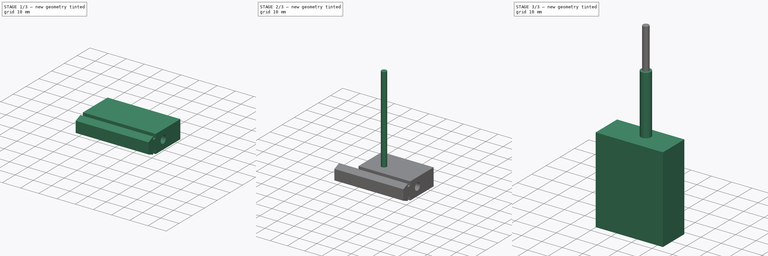
[diagram: build sequence overview — one tinted view per stage of 3, left to right]
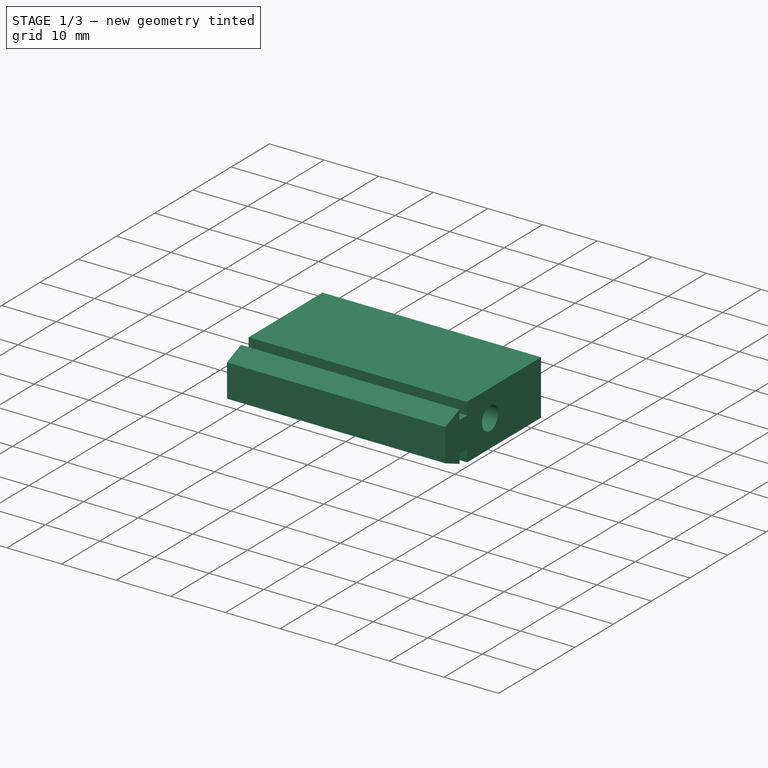
[diagram: stage 1 of 3 — iso view after this stage's code; geometry added in this stage tinted green]
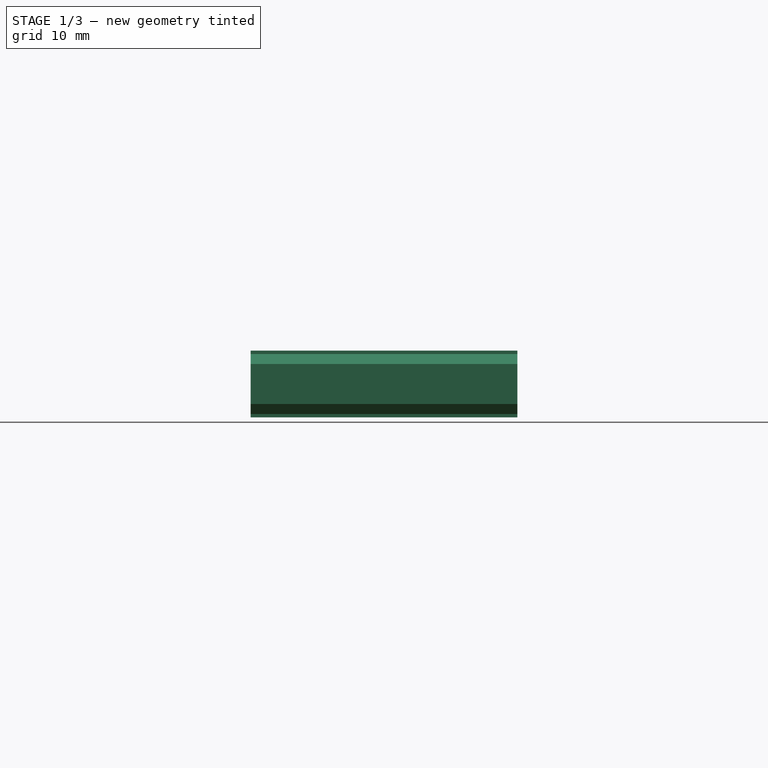
[diagram: stage 1 of 3 — front view after this stage's code; geometry added in this stage tinted green]
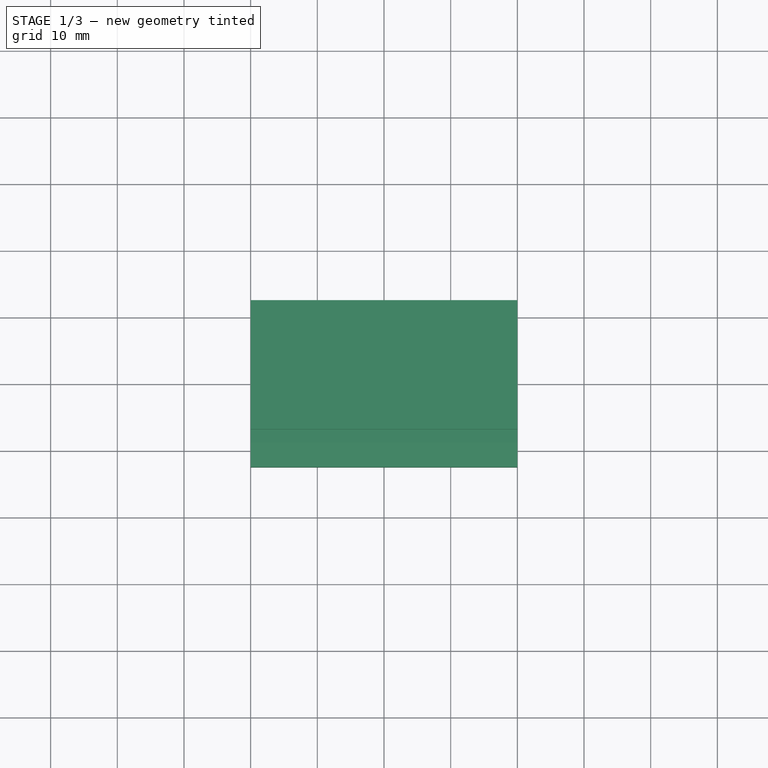
[diagram: stage 1 of 3 — top view after this stage's code; geometry added in this stage tinted green]
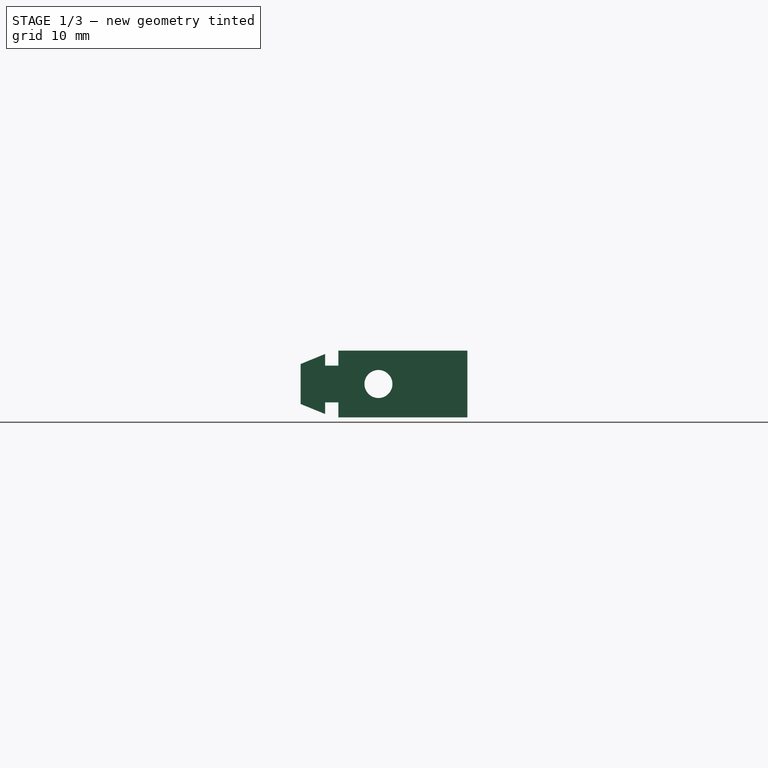
[diagram: stage 1 of 3 — right view after this stage's code; geometry added in this stage tinted green]
FCSTD DOCUMENT  (FreeCAD 1.0R39109 (Git))
Label: LockProfile_6
License: All rights reserved
LicenseURL: http://en.wikipedia.org/wiki/All_rights_reserved
objects: Sketcher::SketchObject×5, Path::FeaturePython×5, Part::FeaturePython×4, PartDesign::Pocket×3, App::DocumentObjectGroup×3, PartDesign::Pad×1, App::FeaturePython×1, PartDesign::Body×1
note: 29 computed .brp shape members not serialized (recipe doc carries the construction recipe); baked Part::Feature solids carry a one-line shape summary decoded from their .brp

FEATURE [Sketcher::SketchObject] Sketch
  ArcFitTolerance = 1e-06
  AttachmentSupport = -> [XY_Plane]
  FullyConstrained = true
  MakeInternals = false
  MapMode = 5
  sketch-geometry (5):
    g0: LineSegment StartX=-20 StartY=-12.5 StartZ=0 EndX=20 EndY=-12.5 EndZ=0
    g1: LineSegment StartX=20 StartY=-12.5 StartZ=0 EndX=20 EndY=12.5 EndZ=0
    g2: LineSegment StartX=20 StartY=12.5 StartZ=0 EndX=-20 EndY=12.5 EndZ=0
    g3: LineSegment StartX=-20 StartY=12.5 StartZ=0 EndX=-20 EndY=-12.5 EndZ=0
    g4: GeomPoint [constr] X=0 Y=0 Z=0
  constraints (12):
    c: Coincident(g0,g1)
    c: Coincident(g1,g2)
    c: Coincident(g2,g3)
    c: Coincident(g3,g0)
    c: Horizontal(g0)
    c: Horizontal(g2)
    c: Vertical(g1)
    c: Vertical(g3)
    c: Symmetric(g2,g0,g4)
    c: Distance(g1,g3) = 40
    c: Distance(g0,g2) = 25
    c: Coincident(g4,g-1)
FEATURE [PartDesign::Pad] Pad
  Direction = (0,0,1)
  Length = 10
  Length2 = 10
  Profile = -> Sketch
  ReferenceAxis = -> Sketch [N_Axis]
  Refine = true
  Reversed = true
  Suppressed = false
  Type = 0
FEATURE [Sketcher::SketchObject] Sketch001
  ArcFitTolerance = 1e-06
  ExternalGeometry = -> [Pad]
  FullyConstrained = false
  MakeInternals = false
  MapMode = 5
  Placement = pos=(20,0,0) rot=(0.57735,0.57735,0.57735;2.0944rad)
  sketch-geometry (13):
    g0: LineSegment [constr] StartX=-13.3351 StartY=-5 StartZ=0 EndX=12.5206 EndY=-5 EndZ=0
    g1: LineSegment StartX=-8.83509 StartY=-0.5 StartZ=0 EndX=-8.83509 EndY=-2.25 EndZ=0
    g2: LineSegment StartX=-8.83509 StartY=-2.25 StartZ=0 EndX=-6.83509 EndY=-2.25 EndZ=0
    g3: LineSegment StartX=-6.83509 StartY=-2.25 StartZ=0 EndX=-6.83509 EndY=0 EndZ=0
    g4: LineSegment StartX=-12.5 StartY=-2 StartZ=0 EndX=-8.83509 EndY=-0.5 EndZ=0
    g5: LineSegment StartX=-6.83509 StartY=0 StartZ=0 EndX=-12.5 EndY=0 EndZ=0
    g6: LineSegment StartX=-12.5 StartY=-2 StartZ=0 EndX=-12.5 EndY=0 EndZ=0
    g7: LineSegment StartX=-8.83509 StartY=-9.5 StartZ=0 EndX=-8.83509 EndY=-7.75 EndZ=0
    g8: LineSegment StartX=-8.83509 StartY=-7.75 StartZ=0 EndX=-6.83509 EndY=-7.75 EndZ=0
    g9: LineSegment StartX=-6.83509 StartY=-7.75 StartZ=0 EndX=-6.83509 EndY=-10 EndZ=0
    g10: LineSegment StartX=-12.5 StartY=-8 StartZ=0 EndX=-8.83509 EndY=-9.5 EndZ=0
    g11: LineSegment StartX=-6.83509 StartY=-10 StartZ=0 EndX=-12.5 EndY=-10 EndZ=0
    g12: LineSegment StartX=-12.5 StartY=-8 StartZ=0 EndX=-12.5 EndY=-10 EndZ=0
  constraints (28):
    c: Horizontal(g0)
    c: Vertical(g1)
    c: Horizontal(g2)
    c: Coincident(g3,g2)
    c: PointOnObject(g3,g-1)
    c: Vertical(g3)
    c: Coincident(g4,g1)
    c: DistanceY(g0,g4) = 3
    c: DistanceY(g0,g1) = 4.5
    c: DistanceX(g0,g1) = 4.5
    c: DistanceY(g0,g1) = 2.75
    c: Coincident(g2,g1)
    c: DistanceX(g0,g2) = 6.5
    c: Coincident(g5,g3)
    c: Coincident(g6,g4)
    c: Coincident(g6,g5)
    c: Vertical(g6)
    c: DistanceY(g0,g-3) = 5
    c: Vertical(g7)
    c: Horizontal(g8)
    c: Coincident(g9,g8)
    c: Vertical(g9)
    c: Coincident(g10,g7)
    c: Coincident(g8,g7)
    c: Coincident(g11,g9)
    c: Coincident(g12,g10)
    c: Coincident(g12,g11)
    c: Vertical(g12)
FEATURE [PartDesign::Pocket] Pocket
  BaseFeature = -> Pad
  Direction = (-1,0,0)
  Length = 5
  Length2 = 5
  Profile = -> Sketch001
  ReferenceAxis = -> Sketch001 [N_Axis]
  Refine = true
  Suppressed = false
  Type = 1
FEATURE [Path::FeaturePython] _mm_Endmill  label="3mm Endmill001"  # Path/CAM operation (typed FeaturePython)
  HorizFeed = 6.66667
  HorizRapid = 0
  SpindleDir = 0
  SpindleSpeed = 10000
  Tool = -> ToolBit001
  ToolNumber = 2
  VertFeed = 6.66667
  VertRapid = 0
  expr: HorizRapid = SetupSheet.HorizRapid
  expr: VertRapid = SetupSheet.VertRapid
FEATURE [App::DocumentObjectGroup] Tools
  Group = -> [TC__Default_Tool,_mm_Endmill]
FEATURE [Sketcher::SketchObject] Sketch002
  ArcFitTolerance = 1e-06
  AttachmentSupport = -> [Pocket]
  ExternalGeometry = -> [Pad,Pocket]
  FullyConstrained = true
  MakeInternals = false
  MapMode = 5
  Placement = pos=(-20,0,0) rot=(0.57735,-0.57735,-0.57735;2.0944rad)
  sketch-geometry (1):
    g0: Circle CenterX=0.835087 CenterY=-5 CenterZ=0 NormalX=0 NormalY=0 NormalZ=1 AngleXU=0 Radius=2.1
  constraints (3):
    c: Diameter(g0) = 4.2
    c: DistanceX(g0,g-4) = 8
    c: DistanceY(g0,g-3) = 5
FEATURE [PartDesign::Pocket] Pocket001
  BaseFeature = -> Pocket
  Direction = (1,0,0)
  Length = 5
  Length2 = 5
  Profile = -> Sketch002
  ReferenceAxis = -> Sketch002 [N_Axis]
  Refine = true
  Suppressed = false
  Type = 1
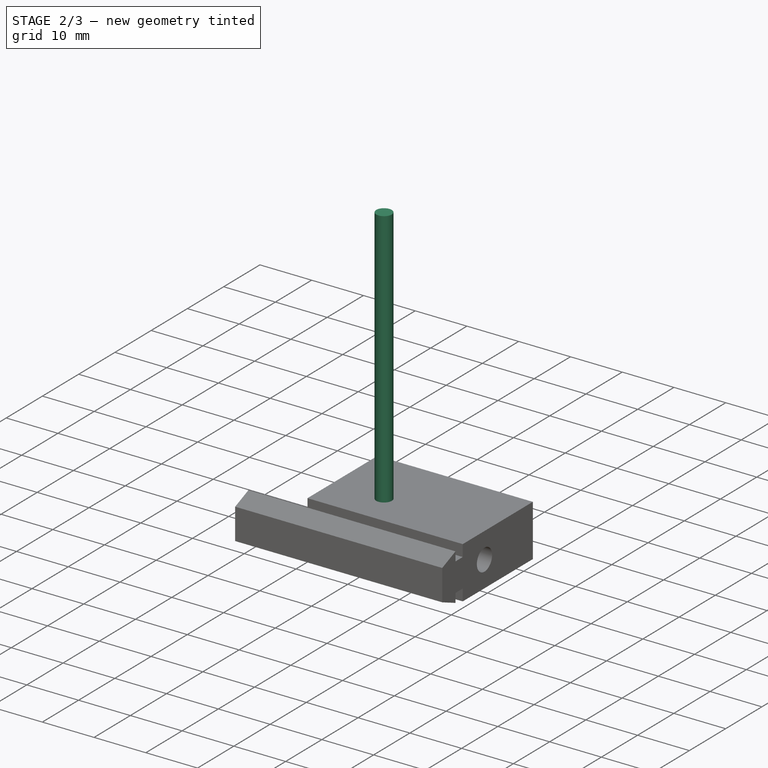
[diagram: stage 2 of 3 — iso view after this stage's code; geometry added in this stage tinted green]
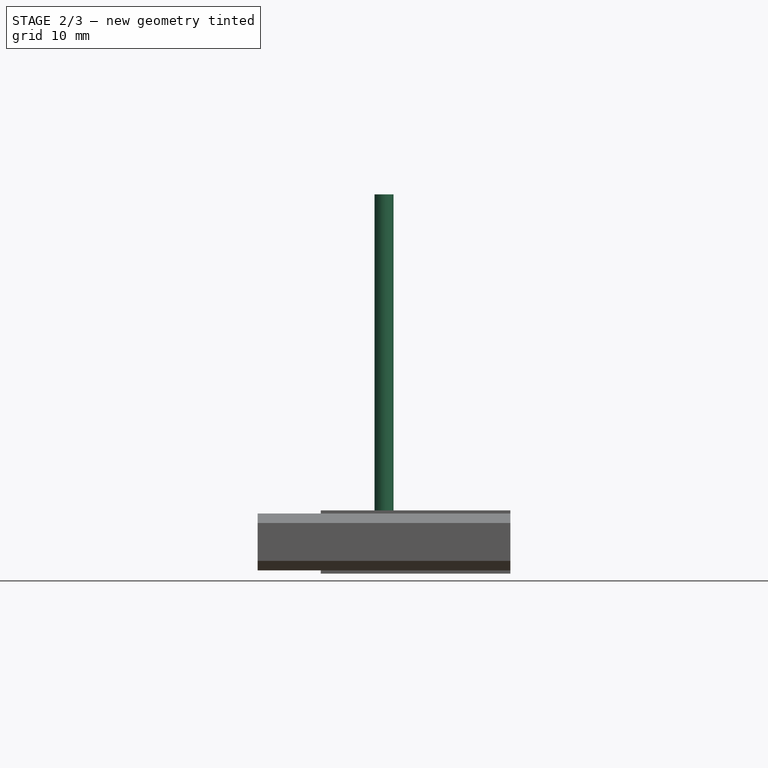
[diagram: stage 2 of 3 — front view after this stage's code; geometry added in this stage tinted green]
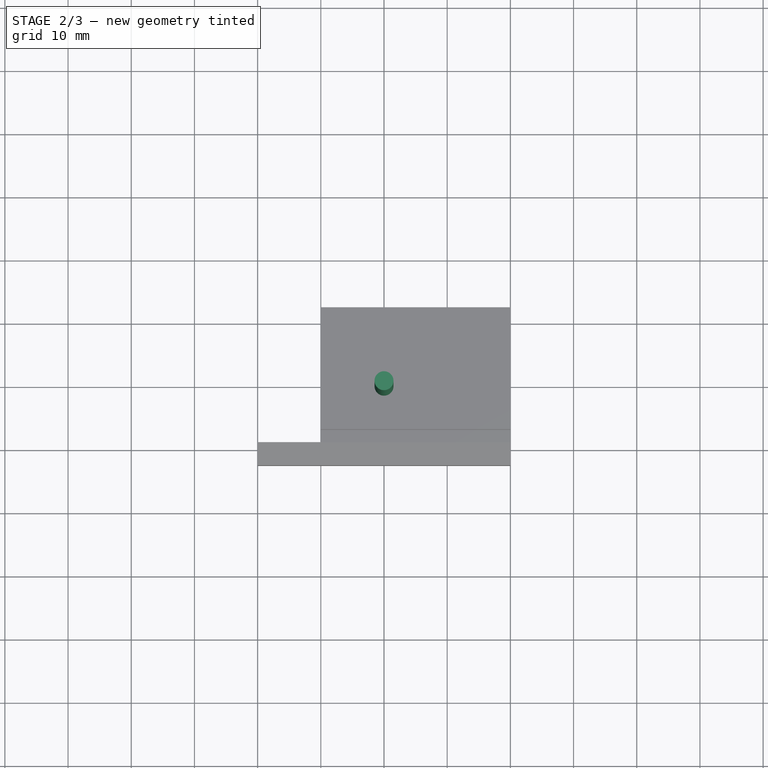
[diagram: stage 2 of 3 — top view after this stage's code; geometry added in this stage tinted green]
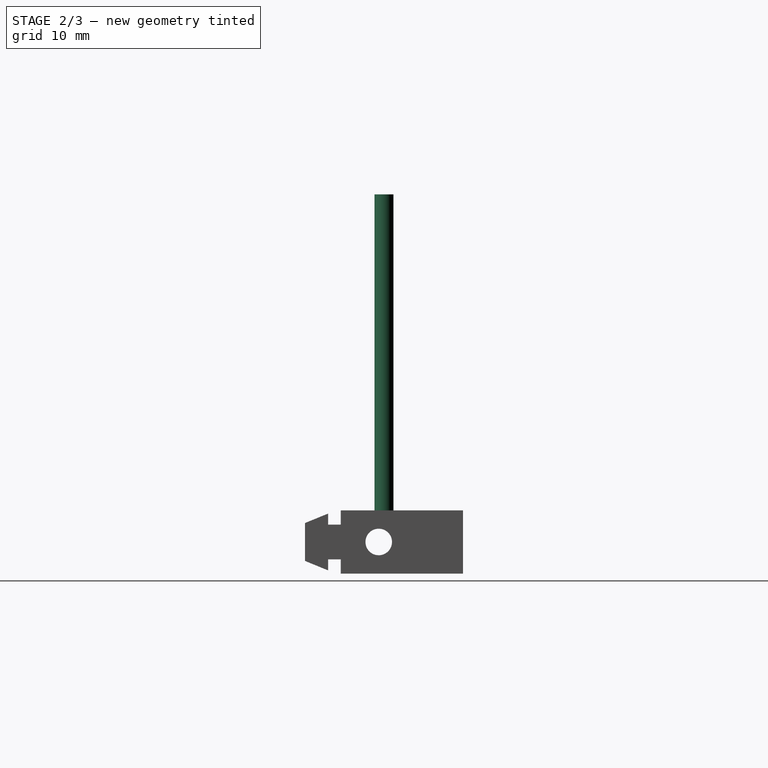
[diagram: stage 2 of 3 — right view after this stage's code; geometry added in this stage tinted green]
FEATURE [Path::FeaturePython] TC__Default_Tool  label="TC: Default Tool"  # Path/CAM operation (typed FeaturePython)
  HorizFeed = 6.66667
  HorizRapid = 0
  SpindleDir = 0
  SpindleSpeed = 10000
  Tool = -> ToolBit
  ToolNumber = 1
  VertFeed = 6.66667
  VertRapid = 0
  expr: HorizRapid = SetupSheet.HorizRapid
  expr: VertRapid = SetupSheet.VertRapid
FEATURE [Part::FeaturePython] ToolBit001  label="3mm Endmill"  # Path/CAM toolbit (typed FeaturePython)
  BitPropertyNames = Chipload | CuttingEdgeHeight | Diameter | Flutes | Length | Material | ShankDiameter | SpindleDirection
  BitShape = <path>
  Chipload = 0
  CuttingEdgeHeight = 15
  Diameter = 3
  File = <path>
  Flutes = 0
  Length = 50
  Material = 0
  ShankDiameter = 3
  ShapeName = endmill
  SpindleDirection = 0
FEATURE [Sketcher::SketchObject] Sketch003
  ArcFitTolerance = 1e-06
  AttachmentSupport = -> [Pocket001]
  ExternalGeometry = -> [Pad,Pocket001]
  FullyConstrained = true
  MakeInternals = false
  MapMode = 5
  Placement = pos=(-20,0,0) rot=(0.57735,-0.57735,-0.57735;2.0944rad)
  sketch-geometry (4):
    g0: LineSegment StartX=-12.5 StartY=-10 StartZ=0 EndX=8.83509 EndY=-10 EndZ=0
    g1: LineSegment StartX=8.83509 StartY=-10 StartZ=0 EndX=8.83509 EndY=0 EndZ=0
    g2: LineSegment StartX=8.83509 StartY=0 StartZ=0 EndX=-12.5 EndY=0 EndZ=0
    g3: LineSegment StartX=-12.5 StartY=0 StartZ=0 EndX=-12.5 EndY=-10 EndZ=0
  constraints (11):
    c: Coincident(g0,g1)
    c: Coincident(g1,g2)
    c: Coincident(g2,g3)
    c: Coincident(g3,g0)
    c: Horizontal(g0)
    c: Horizontal(g2)
    c: Vertical(g1)
    c: Vertical(g3)
    c: Coincident(g0,g-4)
    c: PointOnObject(g1,g-1)
    c: Vertical(g-3,g1)
FEATURE [PartDesign::Pocket] Pocket002
  BaseFeature = -> Pocket001
  Direction = (1,0,0)
  Length = 10
  Length2 = 5
  Profile = -> Sketch003
  ReferenceAxis = -> Sketch003 [N_Axis]
  Refine = true
  Suppressed = false
  Type = 0
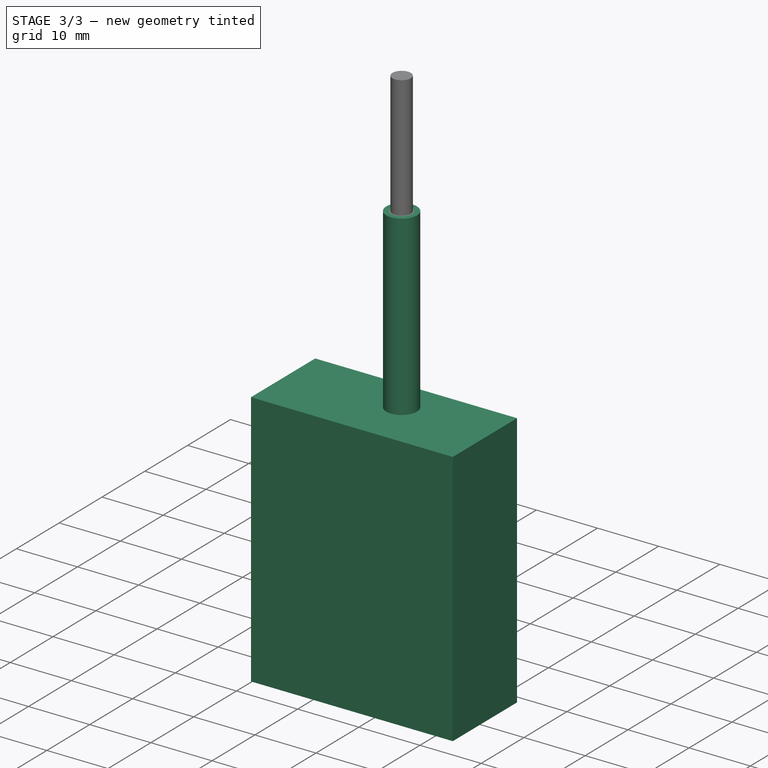
[diagram: stage 3 of 3 — iso view after this stage's code; geometry added in this stage tinted green]
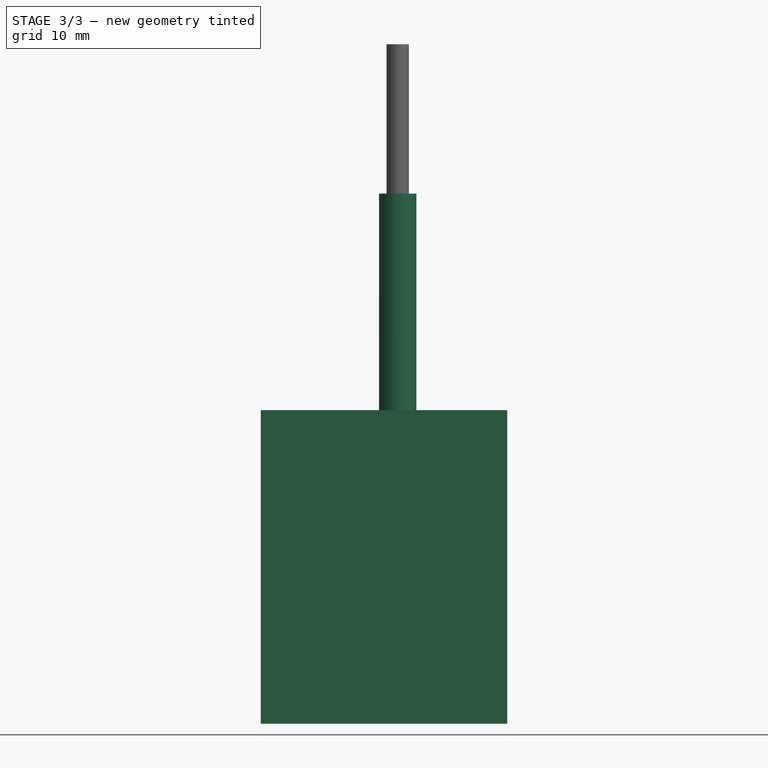
[diagram: stage 3 of 3 — front view after this stage's code; geometry added in this stage tinted green]
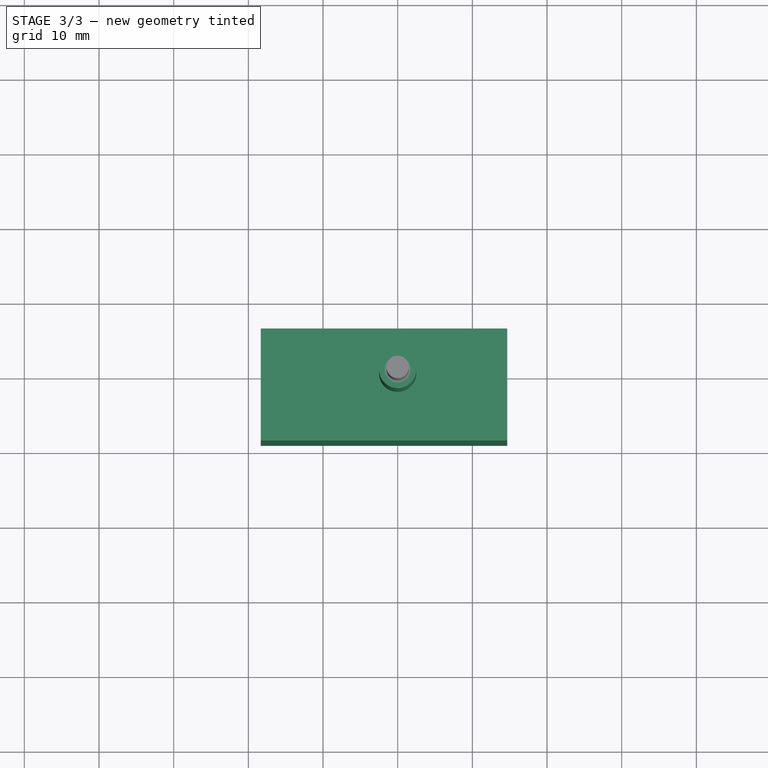
[diagram: stage 3 of 3 — top view after this stage's code; geometry added in this stage tinted green]
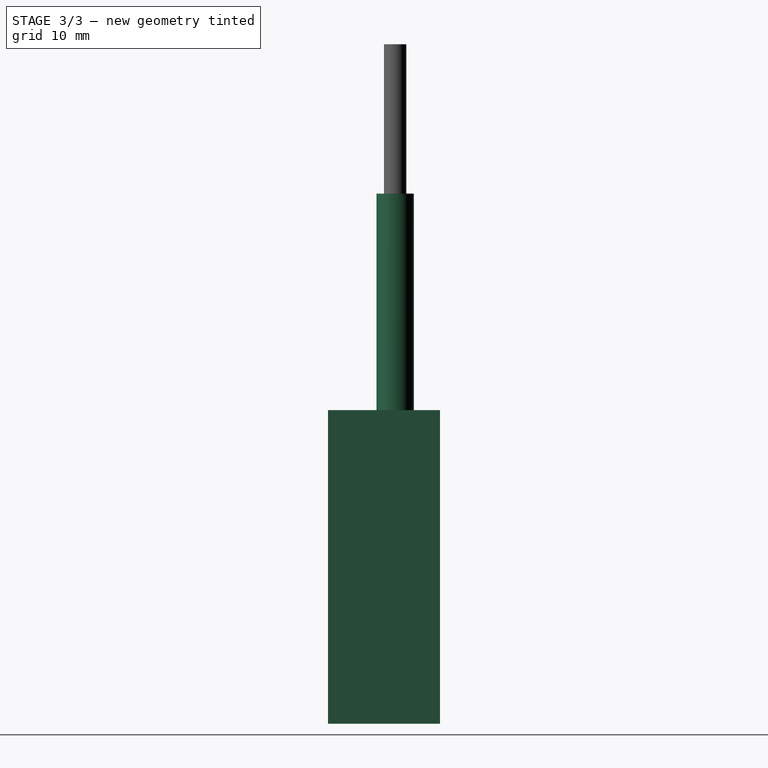
[diagram: stage 3 of 3 — right view after this stage's code; geometry added in this stage tinted green]
FEATURE [App::FeaturePython] SetupSheet  # Path/CAM operation (typed FeaturePython)
  ClearanceHeightExpression = OpStockZMax+SetupSheet.ClearanceHeightOffset
  ClearanceHeightOffset = 5
  CoolantMode = 0
  CoolantModes = None | Flood | Mist
  FinalDepthExpression = OpFinalDepth
  HorizRapid = 0
  SafeHeightExpression = OpStockZMax+SetupSheet.SafeHeightOffset
  SafeHeightOffset = 3
  StartDepthExpression = OpStartDepth
  StepDownExpression = OpToolDiameter
  VertRapid = 0
FEATURE [Part::FeaturePython] ToolBit  label="Endmill"  # Path/CAM toolbit (typed FeaturePython)
  BitPropertyNames = Chipload | CuttingEdgeHeight | Diameter | Flutes | Length | Material | ShankDiameter | SpindleDirection
  BitShape = <path>
  Chipload = 0
  CuttingEdgeHeight = 30
  Diameter = 5
  Flutes = 0
  Length = 50
  Material = 0
  ShankDiameter = 3
  ShapeName = endmill
  SpindleDirection = 0
FEATURE [PartDesign::Body] Body  label="Тіло"
  AllowCompound = false
  Group = -> [Sketch,Pad,Sketch001,Pocket,Sketch002,Pocket001,Sketch003,Pocket002]
  Origin = -> Origin
  Tip = -> Pocket002
FEATURE [Part::FeaturePython] Clone  label="Model-Тіло"  # Draft clone (typed FeaturePython)
  AttacherType = Attacher::AttachEngine3D
  Fuse = false
  Objects = -> [Body]
  PathResource = Model
  Placement = pos=(-1.83246,-5,-20) rot=(-0.57735,-0.57735,0.57735;4.18879rad)
  Scale = (1,1,1)
FEATURE [Sketcher::SketchObject] Sketch004
  ArcFitTolerance = 1e-06
  AttachmentSupport = -> [Clone]
  ExternalGeometry = -> [Clone]
  FullyConstrained = true
  MakeInternals = false
  MapMode = 5
  Placement = pos=(-1.83246,-5,-10) rot=(0,0,1;3.14159rad)
  sketch-geometry (4):
    g0: LineSegment StartX=-12.5 StartY=-10 StartZ=0 EndX=8.83509 EndY=-10 EndZ=0
    g1: LineSegment StartX=8.83509 StartY=-10 StartZ=0 EndX=8.83509 EndY=0 EndZ=0
    g2: LineSegment StartX=8.83509 StartY=0 StartZ=0 EndX=-12.5 EndY=0 EndZ=0
    g3: LineSegment StartX=-12.5 StartY=0 StartZ=0 EndX=-12.5 EndY=-10 EndZ=0
  constraints (11):
    c: Coincident(g0,g1)
    c: Coincident(g1,g2)
    c: Coincident(g2,g3)
    c: Coincident(g3,g0)
    c: Horizontal(g0)
    c: Horizontal(g2)
    c: Vertical(g1)
    c: Vertical(g3)
    c: Coincident(g0,g-3)
    c: PointOnObject(g1,g-1)
    c: Vertical(g-4,g1)
FEATURE [App::DocumentObjectGroup] Model
  Group = -> [Clone,Sketch004]
FEATURE [Path::FeaturePython] Adaptive  # Path/CAM operation (typed FeaturePython)
  Active = true
  Base = -> [Sketch004]
  ClearanceHeight = 6
  CoolantMode = 0
  CycleTime = 00:06:27
  ExtensionCorners = true
  ExtensionLengthDefault = 1.5
  FinalDepth = -10
  FinishDepth = 0
  FinishingProfile = true
  ForceInsideOut = false
  HelixAngle = 5
  HelixConeAngle = 0
  HelixDiameterLimit = 1.5
  KeepToolDownRatio = 3
  LiftDistance = 0
  OpFinalDepth = -10
  OpStartDepth = 1
  OpStockZMax = 1
  OpStockZMin = -41
  OpToolDiameter = 3
  OperationType = 0
  SafeHeight = 4
  Side = 1
  StartDepth = 1
  StepDown = 6
  StepOver = 10
  StockToLeave = 0
  StopProcessing = false
  Stopped = false
  Tolerance = 0.1
  ToolController = -> _mm_Endmill
  UseHelixArcs = false
  UseOutline = false
  expr: ClearanceHeight = OpStockZMax + SetupSheet.ClearanceHeightOffset
  expr: ExtensionLengthDefault = OpToolDiameter / 2
  expr: FinalDepth = OpFinalDepth
  expr: SafeHeight = OpStockZMax + SetupSheet.SafeHeightOffset
  expr: StartDepth = OpStartDepth
  expr: StepDown = OpToolDiameter * 2
FEATURE [Part::FeaturePython] Stock001  # WARN: FeaturePython — macro-defined, semantics opaque (R4)
  Base = -> Model
  ExtXneg = 4
  ExtXpos = 4
  ExtYneg = 4
  ExtYpos = 1
  ExtZneg = 1
  ExtZpos = 1
  Placement = pos=(-14.3325,-5,-40) rot=(0,0,1;0rad)
  StockType = FromBase
FEATURE [Path::FeaturePython] Adaptive001  # Path/CAM operation (typed FeaturePython)
  Active = true
  Base = -> [Clone]
  ClearanceHeight = 6
  CoolantMode = 0
  CycleTime = 00:00:35
  ExtensionCorners = true
  ExtensionLengthDefault = 1.5
  FinalDepth = -20
  FinishDepth = 0
  FinishingProfile = true
  ForceInsideOut = false
  HelixAngle = 5
  HelixConeAngle = 0
  HelixDiameterLimit = 1
  KeepToolDownRatio = 3
  LiftDistance = 0
  OpFinalDepth = -40
  OpStartDepth = 1
  OpStockZMax = 1
  OpStockZMin = -41
  OpToolDiameter = 3
  OperationType = 0
  SafeHeight = 4
  Side = 1
  StartDepth = -10
  StepDown = 6
  StepOver = 10
  StockToLeave = 0
  StopProcessing = false
  Stopped = false
  Tolerance = 0.1
  ToolController = -> _mm_Endmill
  UseHelixArcs = false
  UseOutline = false
  expr: ClearanceHeight = OpStockZMax + SetupSheet.ClearanceHeightOffset
  expr: ExtensionLengthDefault = OpToolDiameter / 2
  expr: FinalDepth = OpFinalDepth / 2
  expr: SafeHeight = OpStockZMax + SetupSheet.SafeHeightOffset
  expr: StepDown = OpToolDiameter * 2
FEATURE [App::DocumentObjectGroup] Operations
  Group = -> [Adaptive001,Adaptive]
FEATURE [Path::FeaturePython] Job  # Path/CAM operation (typed FeaturePython)
  CycleTime = 00:07:02
  Fixtures = G54
  GeometryTolerance = 0.01
  JobType = 0
  Model = -> Model
  Operations = -> Operations
  OrderOutputBy = 2
  PostProcessor = 11
  PostProcessorArgs = --bcnc
  PostProcessorOutputFile = %D\%d
  SetupSheet = -> SetupSheet
  SplitOutput = false
  Stock = -> Stock001
  Tools = -> Tools
note: 3 file-system paths scrubbed to <path> (originals preserved in the JSON sidecar)
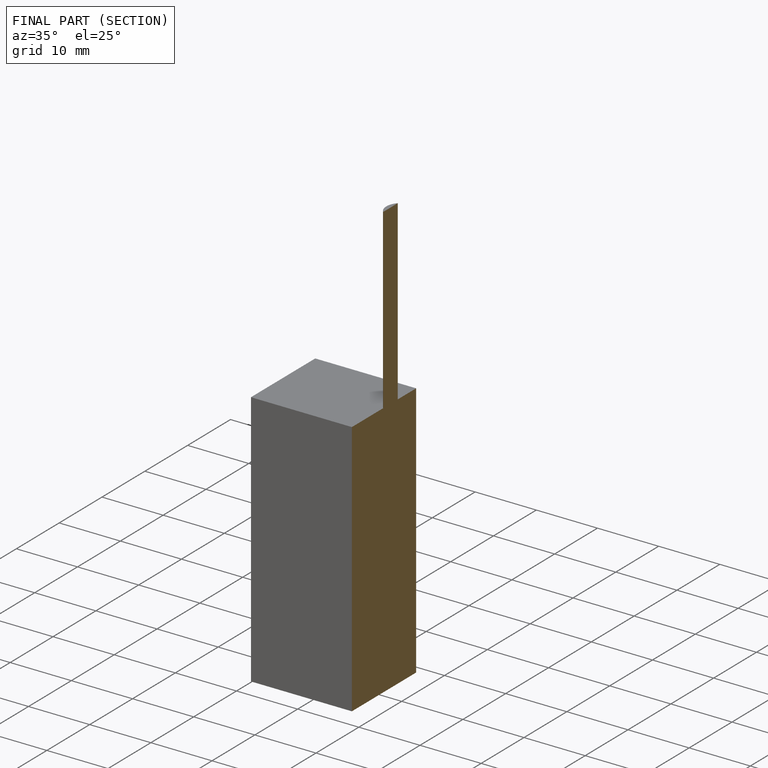
[diagram: finished part — half-section view (interior)]
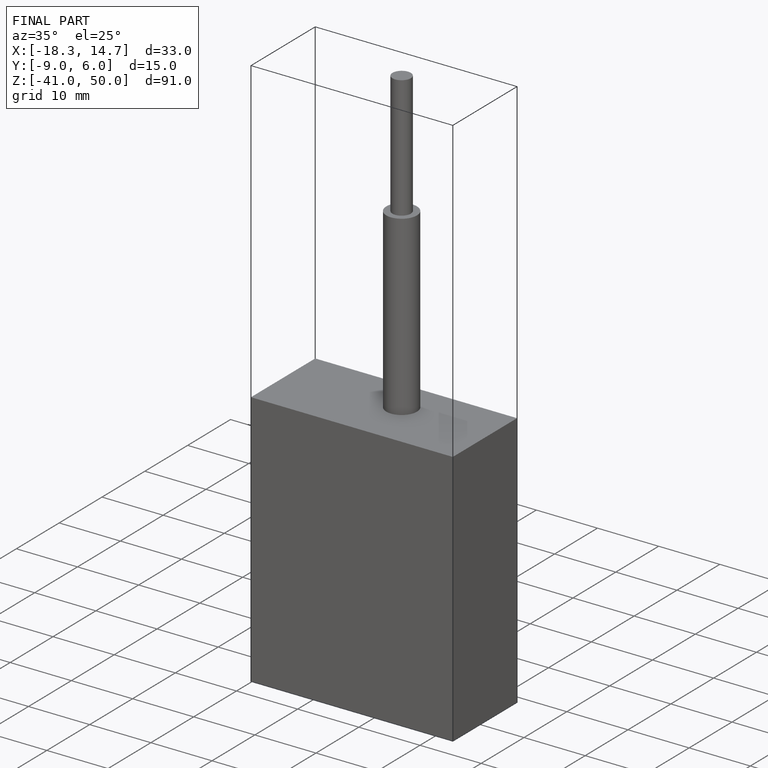
[diagram: finished part — iso view with bounding-box wireframe]
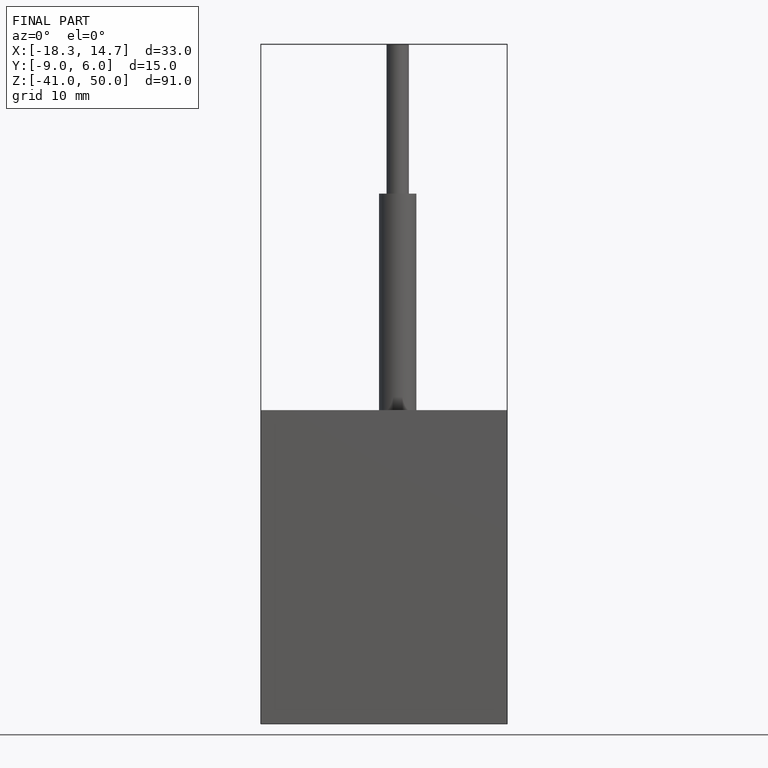
[diagram: finished part — front view with bounding-box wireframe]
